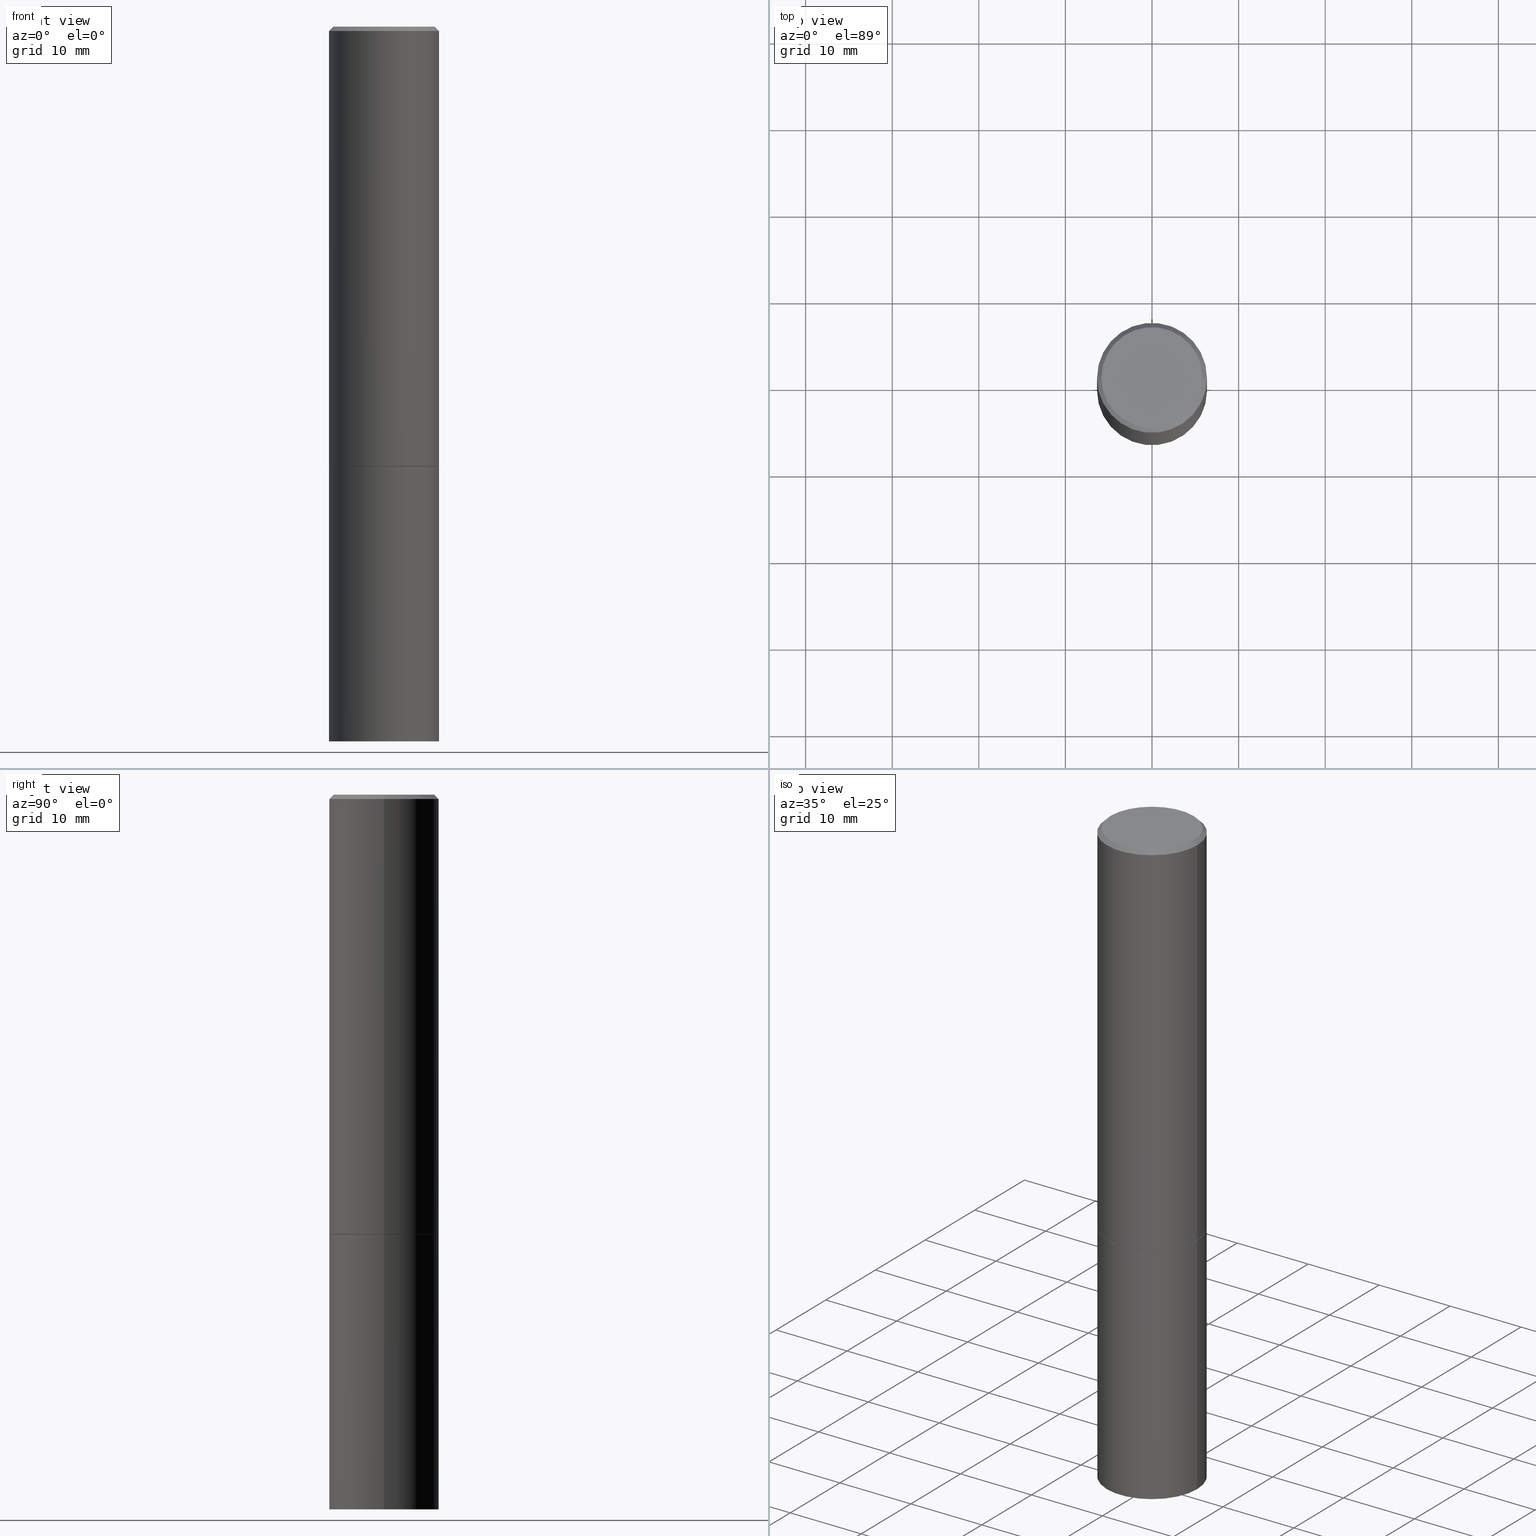
[diagram: canonical four-view strip — front | top / right | iso, engineering-drawing reading convention]
A machine part, canonical four-view strip (front | top / right | iso — engineering-drawing reading convention). The complete STEP part file that produces these views, byte-faithful:
ISO-10303-21;
HEADER;
FILE_DESCRIPTION (( 'STEP AP203' ),
    '1' );
FILE_NAME ('37190.STEP',
    '2024-02-27T20:52:48',
    ( '' ),
    ( '' ),
    'SwSTEP 2.0',
    'SolidWorks 2023',
    '' );
FILE_SCHEMA (( 'CONFIG_CONTROL_DESIGN' ));
ENDSEC;

DATA;
#1 = DIMENSIONAL_EXPONENTS ( 1.000000000000000000, 0.000000000000000000, 0.000000000000000000, 0.000000000000000000, 0.000000000000000000, 0.000000000000000000, 0.000000000000000000 ) ;
#2 = VECTOR ( 'NONE', #176, 39.37007874015748143 ) ;
#3 = DIRECTION ( 'NONE',  ( -2.445468806185136597E-29, 3.491481338843145583E-15, 1.000000000000000000 ) ) ;
#4 = LINE ( 'NONE', #192, #130 ) ;
#5 = DIRECTION ( 'NONE',  ( 0.000000000000000000, 0.000000000000000000, 1.000000000000000000 ) ) ;
#6 = DIRECTION ( 'NONE',  ( -2.445468806185136597E-29, 3.491481338843145583E-15, 1.000000000000000000 ) ) ;
#7 = VERTEX_POINT ( 'NONE', #288 ) ;
#8 = LINE ( 'NONE', #120, #360 ) ;
#9 =( GEOMETRIC_REPRESENTATION_CONTEXT ( 3 ) GLOBAL_UNCERTAINTY_ASSIGNED_CONTEXT ( ( #166 ) ) GLOBAL_UNIT_ASSIGNED_CONTEXT ( ( #177, #74, #78 ) ) REPRESENTATION_CONTEXT ( 'NONE', 'WORKASPACE' ) );
#10 = DESIGN_CONTEXT ( 'detailed design', #14, 'design' ) ;
#11 = DIRECTION ( 'NONE',  ( 1.000000000000000000, -6.982962677686267499E-15, 0.000000000000000000 ) ) ;
#12 = DIRECTION ( 'NONE',  ( -2.445468806185136597E-29, 3.491481338843145583E-15, 1.000000000000000000 ) ) ;
#13 = ADVANCED_FACE ( 'NONE', ( #45 ), #151, .T. ) ;
#14 = APPLICATION_CONTEXT ( 'configuration controlled 3d designs of mechanical parts and assemblies' ) ;
#15 = ORIENTED_EDGE ( 'NONE', *, *, #279, .T. ) ;
#16 = LINE ( 'NONE', #231, #2 ) ;
#17 = APPLICATION_PROTOCOL_DEFINITION ( 'international standard', 'config_control_design', 1994, #356 ) ;
#18 = CARTESIAN_POINT ( 'NONE',  ( 4.890937612370288047E-31, -6.982962677686311331E-17, -0.02000000000000005940 ) ) ;
#19 = DIRECTION ( 'NONE',  ( -2.438088387897960049E-29, 3.491481338843145188E-15, 1.000000000000000000 ) ) ;
#20 = VERTEX_POINT ( 'NONE', #220 ) ;
#21 = ADVANCED_BREP_SHAPE_REPRESENTATION ( '37190', ( #281, #284, #119 ), #9 ) ;
#22 = PLANE ( 'NONE',  #337 ) ;
#23 = ORIENTED_EDGE ( 'NONE', *, *, #364, .T. ) ;
#24 = AXIS2_PLACEMENT_3D ( 'NONE', #270, #358, #339 ) ;
#25 = APPROVAL_PERSON_ORGANIZATION ( #127, #70, #81 ) ;
#26 = CARTESIAN_POINT ( 'NONE',  ( 0.2500000000000000000, -8.725211865769014047E-15, -1.998999999999999888 ) ) ;
#27 = EDGE_CURVE ( 'NONE', #321, #366, #312, .T. ) ;
#28 = CC_DESIGN_PERSON_AND_ORGANIZATION_ASSIGNMENT ( #249, #362, ( #268 ) ) ;
#29 = CONICAL_SURFACE ( 'NONE', #238, 0.2489999999999999991, 0.7853981633974141952 ) ;
#30 = PLANE ( 'NONE',  #304 ) ;
#31 = CARTESIAN_POINT ( 'NONE',  ( 0.2499999999999998612, -1.745740669421565692E-15, 1.219044193948983248E-29 ) ) ;
#32 = CALENDAR_DATE ( 2024, 27, 2 ) ;
#33 = AXIS2_PLACEMENT_3D ( 'NONE', #222, #340, #172 ) ;
#34 = ORIENTED_EDGE ( 'NONE', *, *, #357, .T. ) ;
#35 = ADVANCED_FACE ( 'NONE', ( #315 ), #29, .T. ) ;
#36 = EDGE_LOOP ( 'NONE', ( #233, #124 ) ) ;
#37 = COORDINATED_UNIVERSAL_TIME_OFFSET ( 5, 0, .BEHIND. ) ;
#38 = ORIENTED_EDGE ( 'NONE', *, *, #180, .T. ) ;
#39 = APPROVAL_ROLE ( '' ) ;
#40 = AXIS2_PLACEMENT_3D ( 'NONE', #67, #197, #343 ) ;
#41 = DIRECTION ( 'NONE',  ( -1.000000000000000000, 6.982962677686267499E-15, 0.000000000000000000 ) ) ;
#42 = EDGE_CURVE ( 'NONE', #321, #165, #171, .T. ) ;
#43 = CARTESIAN_POINT ( 'NONE',  ( 0.000000000000000000, 0.000000000000000000, 0.000000000000000000 ) ) ;
#44 = FACE_OUTER_BOUND ( 'NONE', #348, .T. ) ;
#45 = FACE_OUTER_BOUND ( 'NONE', #155, .T. ) ;
#46 = PRODUCT ( '37190', '37190', '', ( #326 ) ) ;
#47 = CARTESIAN_POINT ( 'NONE',  ( 4.890937612370273194E-29, -6.982962677686291165E-15, -2.000000000000000000 ) ) ;
#48 = CIRCLE ( 'NONE', #138, 0.2500000000000000000 ) ;
#49 = EDGE_CURVE ( 'NONE', #188, #20, #61, .T. ) ;
#50 = DIRECTION ( 'NONE',  ( 1.000000000000000000, -6.982962677686266711E-15, 4.876225828469314487E-29 ) ) ;
#51 = APPROVAL_DATE_TIME ( #104, #70 ) ;
#52 = DATE_TIME_ROLE ( 'classification_date' ) ;
#53 = ORIENTED_EDGE ( 'NONE', *, *, #364, .F. ) ;
#54 = PERSON_AND_ORGANIZATION ( #331, #58 ) ;
#55 = DIRECTION ( 'NONE',  ( 2.438088387897960049E-29, -3.491481338843145188E-15, -1.000000000000000000 ) ) ;
#56 = ORIENTED_EDGE ( 'NONE', *, *, #307, .T. ) ;
#57 = ADVANCED_FACE ( 'NONE', ( #168 ), #106, .T. ) ;
#58 = ORGANIZATION ( 'UNSPECIFIED', 'UNSPECIFIED', '' ) ;
#59 = CALENDAR_DATE ( 2024, 27, 2 ) ;
#60 = CARTESIAN_POINT ( 'NONE',  ( -0.2299999999999997324, 1.640996229256270744E-15, 4.268512490089056766E-18 ) ) ;
#61 = CIRCLE ( 'NONE', #240, 0.2500000000000000000 ) ;
#62 = DIRECTION ( 'NONE',  ( -0.7071067811865232589, 7.493145998870265808E-15, 0.7071067811865715536 ) ) ;
#63 = CIRCLE ( 'NONE', #76, 0.2500000000000000000 ) ;
#64 = ORIENTED_EDGE ( 'NONE', *, *, #199, .T. ) ;
#65 = VERTEX_POINT ( 'NONE', #170 ) ;
#66 = APPROVAL_DATE_TIME ( #252, #213 ) ;
#67 = CARTESIAN_POINT ( 'NONE',  ( 1.745740669421645958E-15, 0.2499999999999886480, -3.250000000000001332 ) ) ;
#68 = VECTOR ( 'NONE', #269, 39.37007874015748143 ) ;
#69 = DIRECTION ( 'NONE',  ( 0.7071067811865232589, -2.468850131082003836E-15, 0.7071067811865715536 ) ) ;
#70 = APPROVAL ( #324, 'UNSPECIFIED' ) ;
#71 = DIRECTION ( 'NONE',  ( -1.000000000000000000, 6.982962677686267499E-15, 0.000000000000000000 ) ) ;
#72 = CYLINDRICAL_SURFACE ( 'NONE', #194, 0.2500000000000000000 ) ;
#73 = ORIENTED_EDGE ( 'NONE', *, *, #27, .F. ) ;
#74 =( NAMED_UNIT ( * ) PLANE_ANGLE_UNIT ( ) SI_UNIT ( $, .RADIAN. ) );
#75 = DIRECTION ( 'NONE',  ( 1.000000000000000000, -6.982962677686262766E-15, 0.000000000000000000 ) ) ;
#76 = AXIS2_PLACEMENT_3D ( 'NONE', #88, #12, #295 ) ;
#77 = DIRECTION ( 'NONE',  ( -2.445468806185136597E-29, 3.491481338843145583E-15, 1.000000000000000000 ) ) ;
#78 =( NAMED_UNIT ( * ) SI_UNIT ( $, .STERADIAN. ) SOLID_ANGLE_UNIT ( ) );
#79 = ADVANCED_FACE ( 'NONE', ( #258 ), #287, .T. ) ;
#80 = CIRCLE ( 'NONE', #144, 0.2299999999999997324 ) ;
#81 = APPROVAL_ROLE ( '' ) ;
#82 = EDGE_LOOP ( 'NONE', ( #317, #308, #266, #133 ) ) ;
#83 = LINE ( 'NONE', #131, #273 ) ;
#84 = ORIENTED_EDGE ( 'NONE', *, *, #259, .F. ) ;
#85 = LINE ( 'NONE', #246, #91 ) ;
#86 = AXIS2_PLACEMENT_3D ( 'NONE', #353, #110, #302 ) ;
#87 = DATE_TIME_ROLE ( 'creation_date' ) ;
#88 = CARTESIAN_POINT ( 'NONE',  ( 4.890937612370273194E-29, -6.982962677686291165E-15, -2.000000000000000000 ) ) ;
#89 = ORIENTED_EDGE ( 'NONE', *, *, #142, .F. ) ;
#90 = EDGE_CURVE ( 'NONE', #263, #334, #8, .T. ) ;
#91 = VECTOR ( 'NONE', #301, 39.37007874015748143 ) ;
#92 = DIRECTION ( 'NONE',  ( -2.445468806185136877E-29, 3.491481338843145188E-15, 1.000000000000000000 ) ) ;
#93 = EDGE_CURVE ( 'NONE', #20, #188, #48, .T. ) ;
#94 = DIRECTION ( 'NONE',  ( 2.445468806185136597E-29, -3.491481338843145583E-15, -1.000000000000000000 ) ) ;
#95 = ORIENTED_EDGE ( 'NONE', *, *, #129, .T. ) ;
#96 = CIRCLE ( 'NONE', #332, 0.2299999999999997324 ) ;
#97 = DIRECTION ( 'NONE',  ( 2.438088387897960049E-29, -3.491481338843145188E-15, -1.000000000000000000 ) ) ;
#98 = CARTESIAN_POINT ( 'NONE',  ( 4.890937612370288047E-31, -6.982962677686311331E-17, -0.02000000000000005940 ) ) ;
#99 = DIRECTION ( 'NONE',  ( 1.000000000000000000, -6.982962677686266711E-15, 4.876176775795935793E-29 ) ) ;
#100 = CARTESIAN_POINT ( 'NONE',  ( 0.2299999999999997324, -1.681434332853597236E-15, 4.268512490111905999E-18 ) ) ;
#101 = DIRECTION ( 'NONE',  ( -2.445468806185136597E-29, 3.491481338843145583E-15, 1.000000000000000000 ) ) ;
#102 = DIRECTION ( 'NONE',  ( 2.445468806185136597E-29, -3.491481338843145583E-15, -1.000000000000000000 ) ) ;
#103 = ORIENTED_EDGE ( 'NONE', *, *, #259, .T. ) ;
#104 = DATE_AND_TIME ( #182, #285 ) ;
#105 = CARTESIAN_POINT ( 'NONE',  ( -0.2499999999999999722, -1.748293572161904475E-15, -1.998999999999999888 ) ) ;
#106 = CONICAL_SURFACE ( 'NONE', #300, 0.2499999999999997502, 0.7853981633974473908 ) ;
#107 = CARTESIAN_POINT ( 'NONE',  ( 4.888492143564087591E-29, -6.979471196347447369E-15, -1.998999999999999888 ) ) ;
#108 = APPROVAL_ROLE ( '' ) ;
#109 = ADVANCED_FACE ( 'NONE', ( #44 ), #72, .T. ) ;
#110 = DIRECTION ( 'NONE',  ( -2.445468806185136597E-29, 3.491481338843145583E-15, 1.000000000000000000 ) ) ;
#111 = CIRCLE ( 'NONE', #179, 0.2500000000000000000 ) ;
#112 = CYLINDRICAL_SURFACE ( 'NONE', #283, 0.2499999999999998612 ) ;
#113 = CARTESIAN_POINT ( 'NONE',  ( 0.000000000000000000, 0.000000000000000000, 0.000000000000000000 ) ) ;
#114 = CLOSED_SHELL ( 'NONE', ( #174, #79, #244, #109 ) ) ;
#115 = CALENDAR_DATE ( 2024, 27, 2 ) ;
#116 = ORIENTED_EDGE ( 'NONE', *, *, #142, .T. ) ;
#117 = ORIENTED_EDGE ( 'NONE', *, *, #93, .F. ) ;
#118 = DIRECTION ( 'NONE',  ( 1.000000000000000000, -6.982962677686266711E-15, 4.876176775795935793E-29 ) ) ;
#119 = AXIS2_PLACEMENT_3D ( 'NONE', #43, #5, #352 ) ;
#120 = CARTESIAN_POINT ( 'NONE',  ( 0.2499999999999997502, -1.784954126219744217E-15, -0.02000000000000005940 ) ) ;
#121 = ADVANCED_FACE ( 'NONE', ( #148 ), #261, .T. ) ;
#122 = DIRECTION ( 'NONE',  ( -2.445468806185136597E-29, 3.491481338843145583E-15, 1.000000000000000000 ) ) ;
#123 = ORIENTED_EDGE ( 'NONE', *, *, #187, .T. ) ;
#124 = ORIENTED_EDGE ( 'NONE', *, *, #299, .F. ) ;
#125 = LOCAL_TIME ( 15, 52, 48.00000000000000000, #237 ) ;
#126 = CC_DESIGN_APPROVAL ( #70, ( #206 ) ) ;
#127 = PERSON_AND_ORGANIZATION ( #331, #58 ) ;
#128 = FACE_OUTER_BOUND ( 'NONE', #82, .T. ) ;
#129 = EDGE_CURVE ( 'NONE', #193, #334, #325, .T. ) ;
#130 = VECTOR ( 'NONE', #62, 39.37007874015748854 ) ;
#131 = CARTESIAN_POINT ( 'NONE',  ( -0.2499999999999997502, 1.675911042644701999E-15, -0.02000000000000005940 ) ) ;
#132 = FACE_OUTER_BOUND ( 'NONE', #330, .T. ) ;
#133 = ORIENTED_EDGE ( 'NONE', *, *, #187, .F. ) ;
#134 = DIRECTION ( 'NONE',  ( -1.000000000000000000, 6.982962677686265922E-15, -4.876176775795935793E-29 ) ) ;
#135 = AXIS2_PLACEMENT_3D ( 'NONE', #211, #272, #99 ) ;
#136 = EDGE_LOOP ( 'NONE', ( #34, #116 ) ) ;
#137 = EDGE_CURVE ( 'NONE', #366, #242, #243, .T. ) ;
#138 = AXIS2_PLACEMENT_3D ( 'NONE', #257, #101, #282 ) ;
#139 = CALENDAR_DATE ( 2024, 27, 2 ) ;
#140 = DIRECTION ( 'NONE',  ( -2.445468806185136597E-29, 3.491481338843145583E-15, 1.000000000000000000 ) ) ;
#141 = CARTESIAN_POINT ( 'NONE',  ( 0.000000000000000000, 0.000000000000000000, 0.000000000000000000 ) ) ;
#142 = EDGE_CURVE ( 'NONE', #263, #154, #96, .T. ) ;
#143 = CARTESIAN_POINT ( 'NONE',  ( 7.947773620101693940E-29, -1.134731435124022443E-14, -3.250000000000000000 ) ) ;
#144 = AXIS2_PLACEMENT_3D ( 'NONE', #247, #359, #208 ) ;
#145 = DIRECTION ( 'NONE',  ( 1.000000000000000000, -6.982962677686266711E-15, 0.000000000000000000 ) ) ;
#146 = DIRECTION ( 'NONE',  ( -2.445468806185136597E-29, 3.491481338843145583E-15, 1.000000000000000000 ) ) ;
#147 = CC_DESIGN_DATE_AND_TIME_ASSIGNMENT ( #306, #87, ( #268 ) ) ;
#148 = FACE_OUTER_BOUND ( 'NONE', #201, .T. ) ;
#149 = ORIENTED_EDGE ( 'NONE', *, *, #199, .F. ) ;
#150 = ADVANCED_FACE ( 'NONE', ( #128 ), #232, .T. ) ;
#151 = CONICAL_SURFACE ( 'NONE', #216, 0.2499999999999997502, 0.7853981633974473908 ) ;
#152 = ORIENTED_EDGE ( 'NONE', *, *, #137, .F. ) ;
#153 = PRODUCT_DEFINITION_FORMATION_WITH_SPECIFIED_SOURCE ( 'ANY', '', #46, .NOT_KNOWN. ) ;
#154 = VERTEX_POINT ( 'NONE', #60 ) ;
#155 = EDGE_LOOP ( 'NONE', ( #89, #256, #103, #53 ) ) ;
#156 = PERSON_AND_ORGANIZATION_ROLE ( 'design_owner' ) ;
#157 = FACE_OUTER_BOUND ( 'NONE', #136, .T. ) ;
#158 = ORIENTED_EDGE ( 'NONE', *, *, #49, .F. ) ;
#159 = DIRECTION ( 'NONE',  ( -2.445468806185136597E-29, 3.491481338843145583E-15, 1.000000000000000000 ) ) ;
#160 = EDGE_LOOP ( 'NONE', ( #158, #117 ) ) ;
#161 = AXIS2_PLACEMENT_3D ( 'NONE', #292, #97, #221 ) ;
#162 = AXIS2_PLACEMENT_3D ( 'NONE', #98, #146, #11 ) ;
#163 = CC_DESIGN_APPROVAL ( #213, ( #153 ) ) ;
#164 = ORIENTED_EDGE ( 'NONE', *, *, #93, .T. ) ;
#165 = VERTEX_POINT ( 'NONE', #186 ) ;
#166 = UNCERTAINTY_MEASURE_WITH_UNIT (LENGTH_MEASURE( 1.000000000000000082E-05 ), #177, 'distance_accuracy_value', 'NONE');
#167 = CARTESIAN_POINT ( 'NONE',  ( 0.2489999999999999991, -8.721720384430171040E-15, -2.000000000000000000 ) ) ;
#168 = FACE_OUTER_BOUND ( 'NONE', #298, .T. ) ;
#169 = DIRECTION ( 'NONE',  ( -2.445468806185136597E-29, 3.491481338843145583E-15, 1.000000000000000000 ) ) ;
#170 = CARTESIAN_POINT ( 'NONE',  ( -0.2500000000000000000, -7.388781675063007725E-15, -2.000000000000000000 ) ) ;
#171 = CIRCLE ( 'NONE', #319, 0.2489999999999999991 ) ;
#172 = DIRECTION ( 'NONE',  ( 1.000000000000000000, -6.982962677686266711E-15, 4.876176775795935793E-29 ) ) ;
#173 = DIRECTION ( 'NONE',  ( -2.445468806185136597E-29, 3.491481338843145583E-15, 1.000000000000000000 ) ) ;
#174 = ADVANCED_FACE ( 'NONE', ( #132 ), #245, .T. ) ;
#175 = DIRECTION ( 'NONE',  ( 1.000000000000000000, -6.982962677686266711E-15, 0.000000000000000000 ) ) ;
#176 = DIRECTION ( 'NONE',  ( -2.445468806185136877E-29, 3.491481338843145188E-15, 1.000000000000000000 ) ) ;
#177 =( CONVERSION_BASED_UNIT ( 'INCH', #280 ) LENGTH_UNIT ( ) NAMED_UNIT ( #1 ) );
#178 = FACE_OUTER_BOUND ( 'NONE', #36, .T. ) ;
#179 = AXIS2_PLACEMENT_3D ( 'NONE', #107, #77, #175 ) ;
#180 = EDGE_CURVE ( 'NONE', #165, #242, #4, .T. ) ;
#181 = ORIENTED_EDGE ( 'NONE', *, *, #49, .T. ) ;
#182 = CALENDAR_DATE ( 2024, 27, 2 ) ;
#183 = CARTESIAN_POINT ( 'NONE',  ( -0.2500000000000000000, 1.776356839400250465E-15, -1.229733772563726445E-29 ) ) ;
#184 = DIRECTION ( 'NONE',  ( 1.000000000000000000, -6.982962677686265922E-15, 4.876176775795935793E-29 ) ) ;
#185 = PRODUCT_RELATED_PRODUCT_CATEGORY ( 'detail', '', ( #46 ) ) ;
#186 = CARTESIAN_POINT ( 'NONE',  ( -0.2489999999999999991, -5.208412811295418518E-15, -2.000000000000000000 ) ) ;
#187 = EDGE_CURVE ( 'NONE', #242, #366, #111, .T. ) ;
#188 = VERTEX_POINT ( 'NONE', #294 ) ;
#189 = PERSON_AND_ORGANIZATION ( #331, #58 ) ;
#190 = DIRECTION ( 'NONE',  ( 1.000000000000000000, -6.982962677686266711E-15, 0.000000000000000000 ) ) ;
#191 = SECURITY_CLASSIFICATION_LEVEL ( 'unclassified' ) ;
#192 = CARTESIAN_POINT ( 'NONE',  ( -0.2489999999999999991, -5.213711265643641709E-15, -2.000000000000000000 ) ) ;
#193 = VERTEX_POINT ( 'NONE', #264 ) ;
#194 = AXIS2_PLACEMENT_3D ( 'NONE', #141, #6, #118 ) ;
#195 = DIRECTION ( 'NONE',  ( 1.000000000000000000, -6.982962677686266711E-15, 0.000000000000000000 ) ) ;
#196 = ORIENTED_EDGE ( 'NONE', *, *, #357, .F. ) ;
#197 = DIRECTION ( 'NONE',  ( 2.438088387897960049E-29, -3.491481338843145188E-15, -1.000000000000000000 ) ) ;
#198 = COORDINATED_UNIVERSAL_TIME_OFFSET ( 5, 0, .BEHIND. ) ;
#199 = EDGE_CURVE ( 'NONE', #188, #7, #16, .T. ) ;
#200 = DIRECTION ( 'NONE',  ( 0.7071067811865469066, -7.319954787623254468E-15, -0.7071067811865482389 ) ) ;
#201 = EDGE_LOOP ( 'NONE', ( #262, #123, #255, #248 ) ) ;
#202 = CC_DESIGN_PERSON_AND_ORGANIZATION_ASSIGNMENT ( #314, #289, ( #206 ) ) ;
#203 = APPROVAL_STATUS ( 'not_yet_approved' ) ;
#204 = CIRCLE ( 'NONE', #24, 0.2489999999999999991 ) ;
#205 = CARTESIAN_POINT ( 'NONE',  ( 0.2499999999999997502, -1.784954126219744217E-15, -0.02000000000000005940 ) ) ;
#206 = SECURITY_CLASSIFICATION ( '', '', #191 ) ;
#207 = ORIENTED_EDGE ( 'NONE', *, *, #279, .F. ) ;
#208 = DIRECTION ( 'NONE',  ( 1.000000000000000000, -6.982962677686266711E-15, 4.876225828469314487E-29 ) ) ;
#209 = EDGE_CURVE ( 'NONE', #366, #334, #349, .T. ) ;
#210 = EDGE_LOOP ( 'NONE', ( #355, #38, #152, #73 ) ) ;
#211 = CARTESIAN_POINT ( 'NONE',  ( 0.000000000000000000, 0.000000000000000000, 0.000000000000000000 ) ) ;
#212 = DIRECTION ( 'NONE',  ( 1.000000000000000000, -6.982962677686266711E-15, 4.876176775795935793E-29 ) ) ;
#213 = APPROVAL ( #277, 'UNSPECIFIED' ) ;
#214 = COORDINATED_UNIVERSAL_TIME_OFFSET ( 5, 0, .BEHIND. ) ;
#215 = CLOSED_SHELL ( 'NONE', ( #35, #354, #13, #57, #121, #150, #316, #336 ) ) ;
#216 = AXIS2_PLACEMENT_3D ( 'NONE', #290, #94, #71 ) ;
#217 = ORIENTED_EDGE ( 'NONE', *, *, #307, .F. ) ;
#218 = AXIS2_PLACEMENT_3D ( 'NONE', #347, #122, #229 ) ;
#219 = DATE_AND_TIME ( #32, #125 ) ;
#220 = CARTESIAN_POINT ( 'NONE',  ( -0.2500000000000000000, -7.388781675063007725E-15, -3.250000000000000000 ) ) ;
#221 = DIRECTION ( 'NONE',  ( -1.000000000000000000, 6.982962677686265922E-15, -4.876176775795935793E-29 ) ) ;
#222 = CARTESIAN_POINT ( 'NONE',  ( 0.000000000000000000, 0.000000000000000000, 0.000000000000000000 ) ) ;
#223 = PERSON_AND_ORGANIZATION ( #331, #58 ) ;
#224 = ORIENTED_EDGE ( 'NONE', *, *, #333, .T. ) ;
#225 = CC_DESIGN_SECURITY_CLASSIFICATION ( #206, ( #153 ) ) ;
#226 = DIRECTION ( 'NONE',  ( -2.445468806185136597E-29, 3.491481338843145583E-15, 1.000000000000000000 ) ) ;
#227 = ORIENTED_EDGE ( 'NONE', *, *, #296, .T. ) ;
#228 = EDGE_LOOP ( 'NONE', ( #338, #227, #84, #230 ) ) ;
#229 = DIRECTION ( 'NONE',  ( 1.000000000000000000, -6.982962677686266711E-15, 0.000000000000000000 ) ) ;
#230 = ORIENTED_EDGE ( 'NONE', *, *, #209, .F. ) ;
#231 = CARTESIAN_POINT ( 'NONE',  ( 0.2500000000000000000, -1.745740669421566678E-15, 1.219044193948983948E-29 ) ) ;
#232 = CONICAL_SURFACE ( 'NONE', #291, 0.2489999999999999991, 0.7853981633974141952 ) ;
#233 = ORIENTED_EDGE ( 'NONE', *, *, #42, .F. ) ;
#234 = APPLICATION_PROTOCOL_DEFINITION ( 'international standard', 'config_control_design', 1994, #14 ) ;
#235 = CARTESIAN_POINT ( 'NONE',  ( 4.890937612370273194E-29, -6.982962677686291165E-15, -2.000000000000000000 ) ) ;
#236 = CARTESIAN_POINT ( 'NONE',  ( 4.890937612370273194E-29, -6.982962677686291165E-15, -2.000000000000000000 ) ) ;
#237 = COORDINATED_UNIVERSAL_TIME_OFFSET ( 5, 0, .BEHIND. ) ;
#238 = AXIS2_PLACEMENT_3D ( 'NONE', #47, #140, #190 ) ;
#239 = CARTESIAN_POINT ( 'NONE',  ( 0.2489999999999999991, -8.721720384430171040E-15, -2.000000000000000000 ) ) ;
#240 = AXIS2_PLACEMENT_3D ( 'NONE', #143, #3, #75 ) ;
#241 = COORDINATED_UNIVERSAL_TIME_OFFSET ( 5, 0, .BEHIND. ) ;
#242 = VERTEX_POINT ( 'NONE', #105 ) ;
#243 = CIRCLE ( 'NONE', #218, 0.2500000000000000000 ) ;
#244 = ADVANCED_FACE ( 'NONE', ( #265 ), #346, .F. ) ;
#245 = CYLINDRICAL_SURFACE ( 'NONE', #135, 0.2500000000000000000 ) ;
#246 = CARTESIAN_POINT ( 'NONE',  ( -0.2499999999999998612, 1.776356839400249479E-15, -1.229733772563725745E-29 ) ) ;
#247 = CARTESIAN_POINT ( 'NONE',  ( -1.043851414335219820E-46, 1.490343170380447200E-32, 4.268512490100411279E-18 ) ) ;
#248 = ORIENTED_EDGE ( 'NONE', *, *, #129, .F. ) ;
#249 = PERSON_AND_ORGANIZATION ( #331, #58 ) ;
#250 = APPROVAL_DATE_TIME ( #219, #286 ) ;
#251 = CC_DESIGN_DATE_AND_TIME_ASSIGNMENT ( #297, #52, ( #206 ) ) ;
#252 = DATE_AND_TIME ( #115, #276 ) ;
#253 = APPROVAL_PERSON_ORGANIZATION ( #351, #286, #108 ) ;
#254 = LOCAL_TIME ( 15, 52, 48.00000000000000000, #214 ) ;
#255 = ORIENTED_EDGE ( 'NONE', *, *, #209, .T. ) ;
#256 = ORIENTED_EDGE ( 'NONE', *, *, #90, .T. ) ;
#257 = CARTESIAN_POINT ( 'NONE',  ( 7.947773620101693940E-29, -1.134731435124022443E-14, -3.250000000000000000 ) ) ;
#258 = FACE_OUTER_BOUND ( 'NONE', #160, .T. ) ;
#259 = EDGE_CURVE ( 'NONE', #334, #193, #313, .T. ) ;
#260 = CC_DESIGN_APPROVAL ( #286, ( #268 ) ) ;
#261 = CYLINDRICAL_SURFACE ( 'NONE', #33, 0.2499999999999998612 ) ;
#262 = ORIENTED_EDGE ( 'NONE', *, *, #296, .F. ) ;
#263 = VERTEX_POINT ( 'NONE', #100 ) ;
#264 = CARTESIAN_POINT ( 'NONE',  ( -0.2499999999999997502, 1.675911042644701999E-15, -0.02000000000000005940 ) ) ;
#265 = FACE_OUTER_BOUND ( 'NONE', #305, .T. ) ;
#266 = ORIENTED_EDGE ( 'NONE', *, *, #27, .T. ) ;
#267 = AXIS2_PLACEMENT_3D ( 'NONE', #18, #169, #342 ) ;
#268 = PRODUCT_DEFINITION ( 'UNKNOWN', '', #153, #10 ) ;
#269 = DIRECTION ( 'NONE',  ( -2.445468806185136877E-29, 3.491481338843145188E-15, 1.000000000000000000 ) ) ;
#270 = CARTESIAN_POINT ( 'NONE',  ( 4.890937612370273194E-29, -6.982962677686291165E-15, -2.000000000000000000 ) ) ;
#271 = FACE_OUTER_BOUND ( 'NONE', #228, .T. ) ;
#272 = DIRECTION ( 'NONE',  ( -2.445468806185136597E-29, 3.491481338843145583E-15, 1.000000000000000000 ) ) ;
#273 = VECTOR ( 'NONE', #328, 39.37007874015748143 ) ;
#274 = CC_DESIGN_PERSON_AND_ORGANIZATION_ASSIGNMENT ( #223, #311, ( #153 ) ) ;
#275 = APPROVAL_PERSON_ORGANIZATION ( #335, #213, #39 ) ;
#276 = LOCAL_TIME ( 15, 52, 48.00000000000000000, #37 ) ;
#277 = APPROVAL_STATUS ( 'not_yet_approved' ) ;
#278 = ORIENTED_EDGE ( 'NONE', *, *, #90, .F. ) ;
#279 = EDGE_CURVE ( 'NONE', #20, #65, #327, .T. ) ;
#280 = LENGTH_MEASURE_WITH_UNIT ( LENGTH_MEASURE( 0.02539999999999999897 ), #329 );
#281 = MANIFOLD_SOLID_BREP ( 'Body-Move/Copy2[1]', #114 ) ;
#282 = DIRECTION ( 'NONE',  ( 1.000000000000000000, -6.982962677686262766E-15, 0.000000000000000000 ) ) ;
#283 = AXIS2_PLACEMENT_3D ( 'NONE', #113, #159, #212 ) ;
#284 = MANIFOLD_SOLID_BREP ( 'Body-Move/Copy2[2]', #215 ) ;
#285 = LOCAL_TIME ( 15, 52, 48.00000000000000000, #241 ) ;
#286 = APPROVAL ( #203, 'UNSPECIFIED' ) ;
#287 = PLANE ( 'NONE',  #40 ) ;
#288 = CARTESIAN_POINT ( 'NONE',  ( 0.2500000000000000000, -8.728703347107857054E-15, -2.000000000000000000 ) ) ;
#289 = PERSON_AND_ORGANIZATION_ROLE ( 'classification_officer' ) ;
#290 = CARTESIAN_POINT ( 'NONE',  ( 4.890937612370288047E-31, -6.982962677686311331E-17, -0.02000000000000005940 ) ) ;
#291 = AXIS2_PLACEMENT_3D ( 'NONE', #235, #226, #145 ) ;
#292 = CARTESIAN_POINT ( 'NONE',  ( 1.745740669421615390E-15, 0.2499999999999930334, -2.000000000000000888 ) ) ;
#293 = CARTESIAN_POINT ( 'NONE',  ( -1.043851414335219820E-46, 1.490343170380447200E-32, 4.268512490100411279E-18 ) ) ;
#294 = CARTESIAN_POINT ( 'NONE',  ( 0.2500000000000000000, -1.309305502066178953E-14, -3.250000000000000000 ) ) ;
#295 = DIRECTION ( 'NONE',  ( 1.000000000000000000, -6.982962677686266711E-15, 0.000000000000000000 ) ) ;
#296 = EDGE_CURVE ( 'NONE', #242, #193, #85, .T. ) ;
#297 = DATE_AND_TIME ( #139, #341 ) ;
#298 = EDGE_LOOP ( 'NONE', ( #278, #196, #23, #95 ) ) ;
#299 = EDGE_CURVE ( 'NONE', #165, #321, #204, .T. ) ;
#300 = AXIS2_PLACEMENT_3D ( 'NONE', #310, #102, #41 ) ;
#301 = DIRECTION ( 'NONE',  ( -2.445468806185136877E-29, 3.491481338843145188E-15, 1.000000000000000000 ) ) ;
#302 = DIRECTION ( 'NONE',  ( 1.000000000000000000, -6.982962677686266711E-15, 0.000000000000000000 ) ) ;
#303 = CC_DESIGN_PERSON_AND_ORGANIZATION_ASSIGNMENT ( #189, #309, ( #153 ) ) ;
#304 = AXIS2_PLACEMENT_3D ( 'NONE', #361, #55, #134 ) ;
#305 = EDGE_LOOP ( 'NONE', ( #56, #224 ) ) ;
#306 = DATE_AND_TIME ( #59, #254 ) ;
#307 = EDGE_CURVE ( 'NONE', #7, #65, #63, .T. ) ;
#308 = ORIENTED_EDGE ( 'NONE', *, *, #299, .T. ) ;
#309 = PERSON_AND_ORGANIZATION_ROLE ( 'design_supplier' ) ;
#310 = CARTESIAN_POINT ( 'NONE',  ( 4.890937612370288047E-31, -6.982962677686311331E-17, -0.02000000000000005940 ) ) ;
#311 = PERSON_AND_ORGANIZATION_ROLE ( 'creator' ) ;
#312 = LINE ( 'NONE', #167, #365 ) ;
#313 = CIRCLE ( 'NONE', #267, 0.2499999999999997502 ) ;
#314 = PERSON_AND_ORGANIZATION ( #331, #58 ) ;
#315 = FACE_OUTER_BOUND ( 'NONE', #210, .T. ) ;
#316 = ADVANCED_FACE ( 'NONE', ( #178 ), #22, .F. ) ;
#317 = ORIENTED_EDGE ( 'NONE', *, *, #180, .F. ) ;
#318 = CARTESIAN_POINT ( 'NONE',  ( 4.890937612370273194E-29, -6.982962677686291165E-15, -2.000000000000000000 ) ) ;
#319 = AXIS2_PLACEMENT_3D ( 'NONE', #318, #320, #195 ) ;
#320 = DIRECTION ( 'NONE',  ( -2.445468806185136597E-29, 3.491481338843145583E-15, 1.000000000000000000 ) ) ;
#321 = VERTEX_POINT ( 'NONE', #239 ) ;
#322 = VECTOR ( 'NONE', #92, 39.37007874015748143 ) ;
#323 = CC_DESIGN_PERSON_AND_ORGANIZATION_ASSIGNMENT ( #54, #156, ( #46 ) ) ;
#324 = APPROVAL_STATUS ( 'not_yet_approved' ) ;
#325 = CIRCLE ( 'NONE', #162, 0.2499999999999997502 ) ;
#326 = MECHANICAL_CONTEXT ( 'NONE', #356, 'mechanical' ) ;
#327 = LINE ( 'NONE', #183, #68 ) ;
#328 = DIRECTION ( 'NONE',  ( -0.7071067811865469066, 2.468850131082249961E-15, -0.7071067811865482389 ) ) ;
#329 =( LENGTH_UNIT ( ) NAMED_UNIT ( * ) SI_UNIT ( $, .METRE. ) );
#330 = EDGE_LOOP ( 'NONE', ( #181, #15, #217, #149 ) ) ;
#331 = PERSON ( 'UNSPECIFIED', 'UNSPECIFIED', 'UNSPECIFIED', ('UNSPECIFIED'), ('UNSPECIFIED'), ('UNSPECIFIED') ) ;
#332 = AXIS2_PLACEMENT_3D ( 'NONE', #293, #173, #50 ) ;
#333 = EDGE_CURVE ( 'NONE', #65, #7, #350, .T. ) ;
#334 = VERTEX_POINT ( 'NONE', #205 ) ;
#335 = PERSON_AND_ORGANIZATION ( #331, #58 ) ;
#336 = ADVANCED_FACE ( 'NONE', ( #157 ), #30, .F. ) ;
#337 = AXIS2_PLACEMENT_3D ( 'NONE', #236, #19, #184 ) ;
#338 = ORIENTED_EDGE ( 'NONE', *, *, #137, .T. ) ;
#339 = DIRECTION ( 'NONE',  ( 1.000000000000000000, -6.982962677686266711E-15, 0.000000000000000000 ) ) ;
#340 = DIRECTION ( 'NONE',  ( -2.445468806185136597E-29, 3.491481338843145583E-15, 1.000000000000000000 ) ) ;
#341 = LOCAL_TIME ( 15, 52, 48.00000000000000000, #198 ) ;
#342 = DIRECTION ( 'NONE',  ( 1.000000000000000000, -6.982962677686267499E-15, 0.000000000000000000 ) ) ;
#343 = DIRECTION ( 'NONE',  ( -1.000000000000000000, 6.982962677686265922E-15, -4.876176775795935793E-29 ) ) ;
#344 = SHAPE_DEFINITION_REPRESENTATION ( #345, #21 ) ;
#345 = PRODUCT_DEFINITION_SHAPE ( 'NONE', 'NONE',  #268 ) ;
#346 = PLANE ( 'NONE',  #161 ) ;
#347 = CARTESIAN_POINT ( 'NONE',  ( 4.888492143564087591E-29, -6.979471196347447369E-15, -1.998999999999999888 ) ) ;
#348 = EDGE_LOOP ( 'NONE', ( #207, #164, #64, #363 ) ) ;
#349 = LINE ( 'NONE', #31, #322 ) ;
#350 = CIRCLE ( 'NONE', #86, 0.2500000000000000000 ) ;
#351 = PERSON_AND_ORGANIZATION ( #331, #58 ) ;
#352 = DIRECTION ( 'NONE',  ( 1.000000000000000000, 0.000000000000000000, 0.000000000000000000 ) ) ;
#353 = CARTESIAN_POINT ( 'NONE',  ( 4.890937612370273194E-29, -6.982962677686291165E-15, -2.000000000000000000 ) ) ;
#354 = ADVANCED_FACE ( 'NONE', ( #271 ), #112, .T. ) ;
#355 = ORIENTED_EDGE ( 'NONE', *, *, #42, .T. ) ;
#356 = APPLICATION_CONTEXT ( 'configuration controlled 3d designs of mechanical parts and assemblies' ) ;
#357 = EDGE_CURVE ( 'NONE', #154, #263, #80, .T. ) ;
#358 = DIRECTION ( 'NONE',  ( -2.445468806185136597E-29, 3.491481338843145583E-15, 1.000000000000000000 ) ) ;
#359 = DIRECTION ( 'NONE',  ( -2.445468806185136597E-29, 3.491481338843145583E-15, 1.000000000000000000 ) ) ;
#360 = VECTOR ( 'NONE', #200, 39.37007874015748143 ) ;
#361 = CARTESIAN_POINT ( 'NONE',  ( 1.606081415867839292E-15, 0.2299999999999997324, -8.009064516888723911E-16 ) ) ;
#362 = PERSON_AND_ORGANIZATION_ROLE ( 'creator' ) ;
#363 = ORIENTED_EDGE ( 'NONE', *, *, #333, .F. ) ;
#364 = EDGE_CURVE ( 'NONE', #154, #193, #83, .T. ) ;
#365 = VECTOR ( 'NONE', #69, 39.37007874015748854 ) ;
#366 = VERTEX_POINT ( 'NONE', #26 ) ;
ENDSEC;
END-ISO-10303-21;
